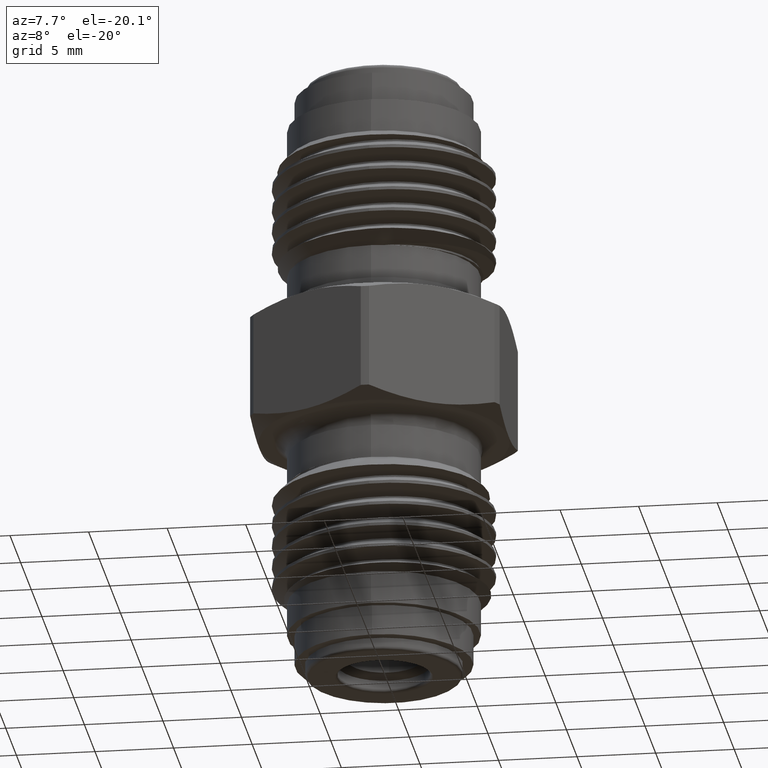
[diagram: clean part render]
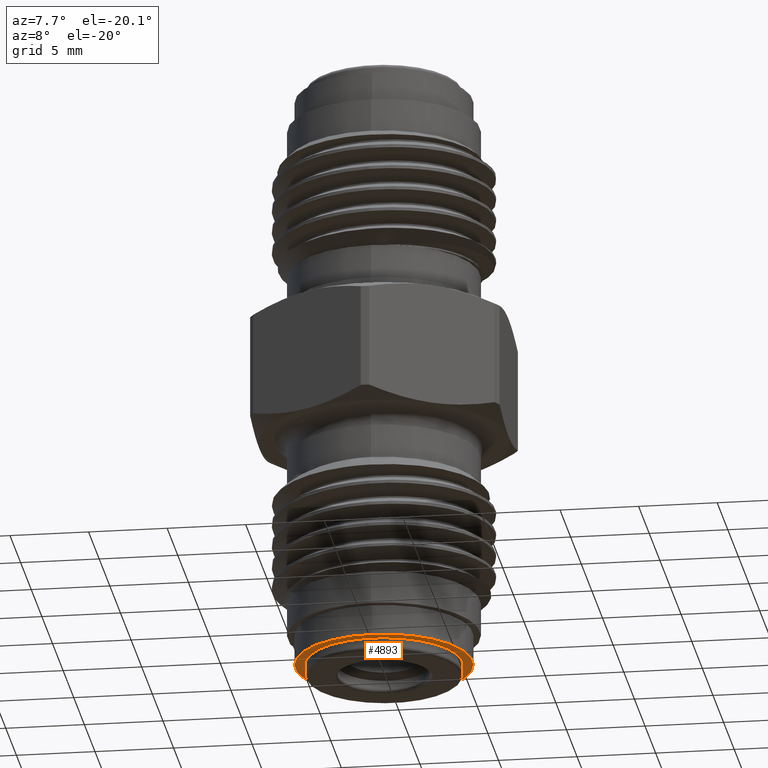
[diagram: same view with one face highlighted and labeled with its STEP entity id]
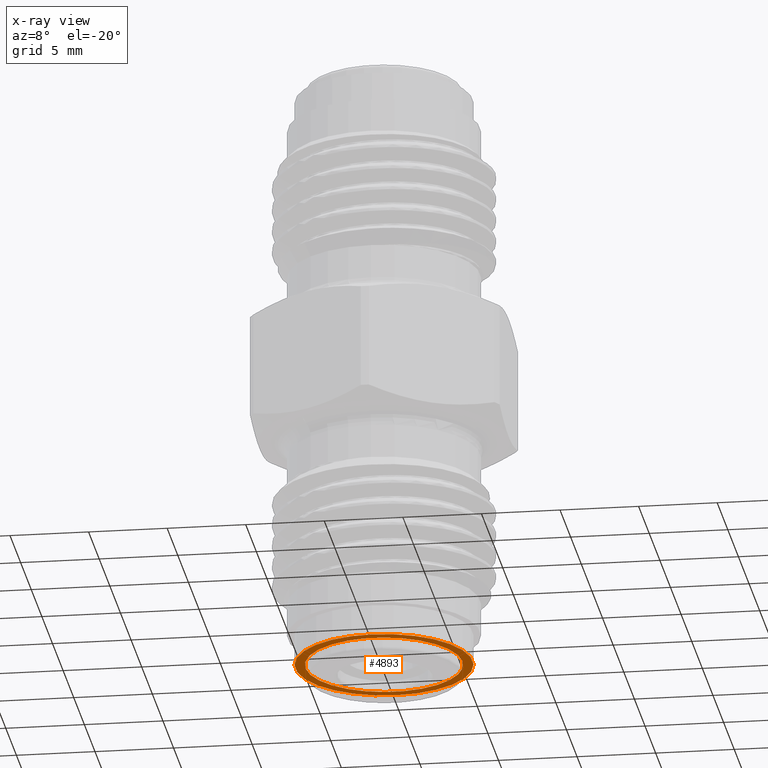
[diagram: x-ray of the same camera — body ghosted, the highlighted face saturated]
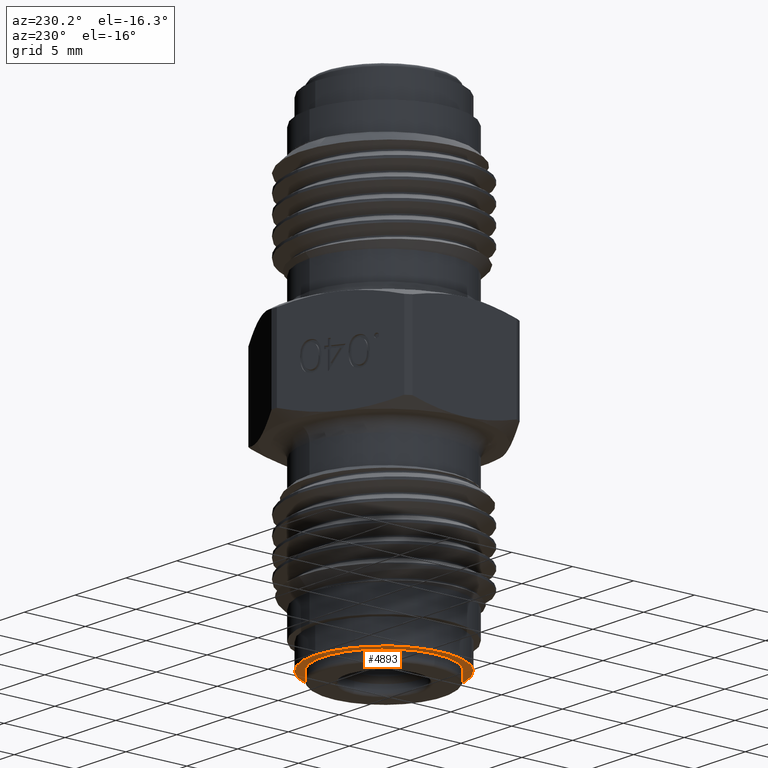
[diagram: same view with one face highlighted and labeled with its STEP entity id]
A machine part, auxiliary view. The second image highlights one B-rep face of the part: STEP entity #4893.
The next image is the same camera in x-ray: the body ghosted, the highlighted face saturated — about 0% of this face is hidden behind the body in this view.
A second angle (auxiliary view) of the same face is appended — the face is thin or edge-on in the first view.
In plain terms, the highlighted planar face has unit normal (0, 0, -1).
Its self-contained STEP definition (entity closure, byte-faithful):
#259 = DIRECTION ( 'NONE',  ( -6.123233995736775897E-17, -3.043985339206562950E-16, 1.000000000000000000 ) ) ;
#376 = AXIS2_PLACEMENT_3D ( 'NONE', #6373, #2220, #1117 ) ;
#507 = ORIENTED_EDGE ( 'NONE', *, *, #13153, .F. ) ;
#981 = VERTEX_POINT ( 'NONE', #13584 ) ;
#996 = DIRECTION ( 'NONE',  ( 0.000000000000000000, 1.000000000000000000, 3.043985339206562950E-16 ) ) ;
#1117 = DIRECTION ( 'NONE',  ( 0.000000000000000000, -1.000000000000000000, -3.072944874762950655E-16 ) ) ;
#1186 = ORIENTED_EDGE ( 'NONE', *, *, #6510, .F. ) ;
#1519 = ORIENTED_EDGE ( 'NONE', *, *, #3777, .F. ) ;
#1647 = VERTEX_POINT ( 'NONE', #11579 ) ;
#1799 = DIRECTION ( 'NONE',  ( 6.123233995736775897E-17, 3.043985339206562950E-16, -1.000000000000000000 ) ) ;
#2220 = DIRECTION ( 'NONE',  ( -6.123233995736775897E-17, -3.043985339206562950E-16, 1.000000000000000000 ) ) ;
#3274 = AXIS2_PLACEMENT_3D ( 'NONE', #7062, #1799, #8011 ) ;
#3333 = AXIS2_PLACEMENT_3D ( 'NONE', #7367, #8529, #12635 ) ;
#3777 = EDGE_CURVE ( 'NONE', #981, #8467, #7977, .T. ) ;
#4470 = EDGE_CURVE ( 'NONE', #5512, #1647, #4957, .T. ) ;
#4893 = ADVANCED_FACE ( 'NONE', ( #12861, #7956 ), #6261, .T. ) ;
#4957 = CIRCLE ( 'NONE', #376, 0.2222500000000000031 ) ;
#5163 = CIRCLE ( 'NONE', #11258, 0.2222500000000000031 ) ;
#5512 = VERTEX_POINT ( 'NONE', #9665 ) ;
#5792 = CIRCLE ( 'NONE', #3333, 0.1965521645205942081 ) ;
#6261 = PLANE ( 'NONE',  #7182 ) ;
#6373 = CARTESIAN_POINT ( 'NONE',  ( -1.990051048614445326E-18, -9.501419964986202661E-18, 0.03250000000000013295 ) ) ;
#6508 = ORIENTED_EDGE ( 'NONE', *, *, #4470, .F. ) ;
#6510 = EDGE_CURVE ( 'NONE', #1647, #5512, #5163, .T. ) ;
#6577 = CARTESIAN_POINT ( 'NONE',  ( -1.990051048614445326E-18, -9.501419964986202661E-18, 0.03250000000000013295 ) ) ;
#7062 = CARTESIAN_POINT ( 'NONE',  ( 0.000000000000000000, 0.000000000000000000, 0.03250000000000002193 ) ) ;
#7182 = AXIS2_PLACEMENT_3D ( 'NONE', #13594, #8255, #996 ) ;
#7367 = CARTESIAN_POINT ( 'NONE',  ( 0.000000000000000000, 0.000000000000000000, 0.03250000000000002193 ) ) ;
#7670 = DIRECTION ( 'NONE',  ( 0.000000000000000000, -1.000000000000000000, -3.072944874762950655E-16 ) ) ;
#7956 = FACE_OUTER_BOUND ( 'NONE', #8007, .T. ) ;
#7977 = CIRCLE ( 'NONE', #3274, 0.1965521645205942081 ) ;
#8007 = EDGE_LOOP ( 'NONE', ( #1186, #6508 ) ) ;
#8011 = DIRECTION ( 'NONE',  ( 0.000000000000000000, 1.000000000000000000, 3.040372259810160946E-16 ) ) ;
#8255 = DIRECTION ( 'NONE',  ( 6.123233995736775897E-17, 3.043985339206562950E-16, -1.000000000000000000 ) ) ;
#8467 = VERTEX_POINT ( 'NONE', #12705 ) ;
#8529 = DIRECTION ( 'NONE',  ( 6.123233995736775897E-17, 3.043985339206562950E-16, -1.000000000000000000 ) ) ;
#9665 = CARTESIAN_POINT ( 'NONE',  ( 2.287027897407681981E-17, 0.2222500000000000031, 0.03250000000000020234 ) ) ;
#11258 = AXIS2_PLACEMENT_3D ( 'NONE', #6577, #259, #7670 ) ;
#11579 = CARTESIAN_POINT ( 'NONE',  ( -1.990051048614445326E-18, -0.2222500000000000031, 0.03250000000000006356 ) ) ;
#12635 = DIRECTION ( 'NONE',  ( 0.000000000000000000, 1.000000000000000000, 3.040372259810160946E-16 ) ) ;
#12705 = CARTESIAN_POINT ( 'NONE',  ( -0.1965521645205942081, 2.185414779394003971E-32, 0.03250000000000001499 ) ) ;
#12861 = FACE_BOUND ( 'NONE', #13485, .T. ) ;
#13153 = EDGE_CURVE ( 'NONE', #8467, #981, #5792, .T. ) ;
#13485 = EDGE_LOOP ( 'NONE', ( #507, #1519 ) ) ;
#13584 = CARTESIAN_POINT ( 'NONE',  ( 0.1965521645205942081, 2.407069791456298081E-17, 0.03250000000000003580 ) ) ;
#13594 = CARTESIAN_POINT ( 'NONE',  ( 6.569511969388040928E-17, 0.2222500000000000031, 0.03250000000000009132 ) ) ;